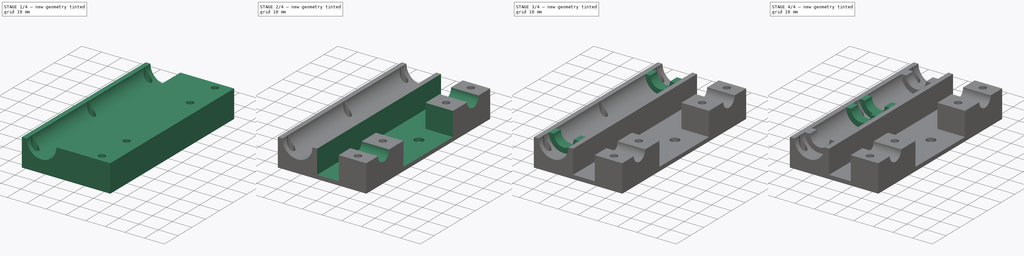
[diagram: build sequence overview — one tinted view per stage of 4, left to right]
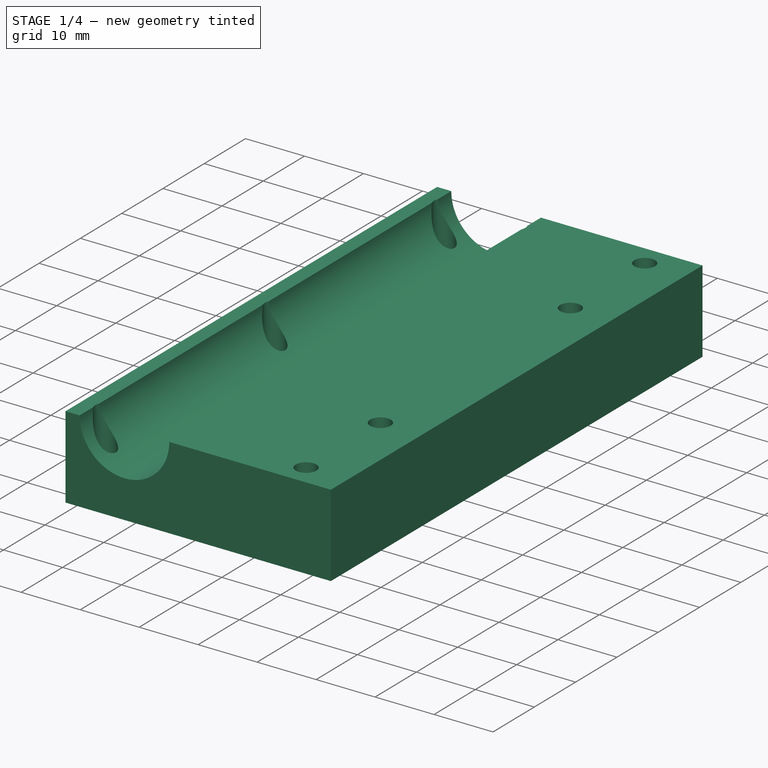
[diagram: stage 1 of 4 — iso view after this stage's code; geometry added in this stage tinted green]
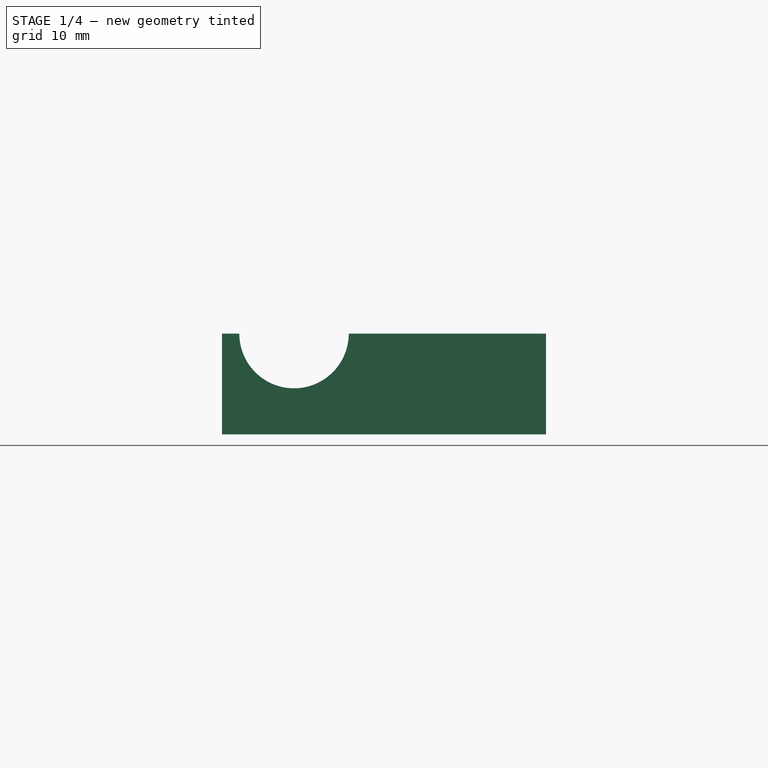
[diagram: stage 1 of 4 — front view after this stage's code; geometry added in this stage tinted green]
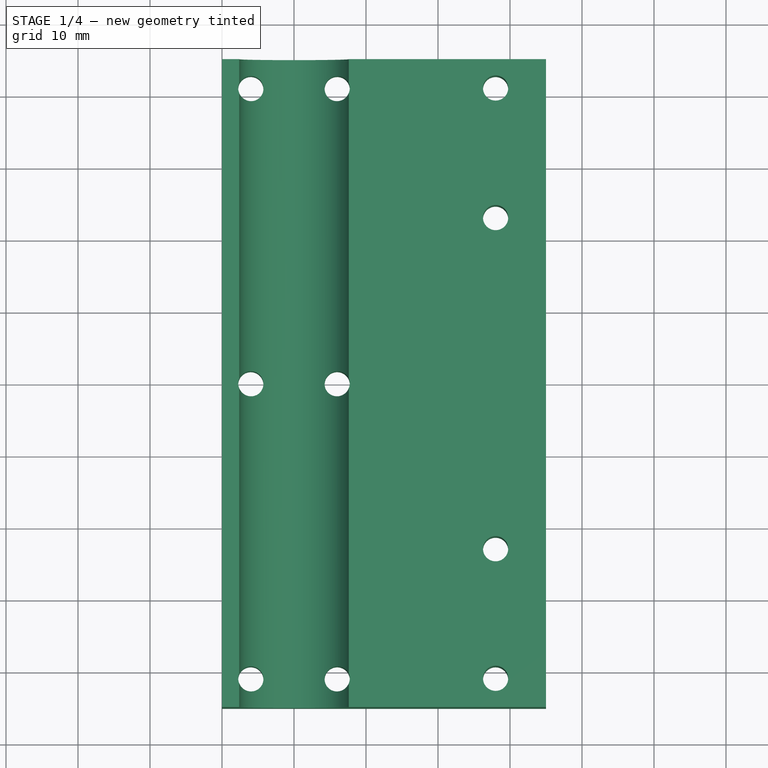
[diagram: stage 1 of 4 — top view after this stage's code; geometry added in this stage tinted green]
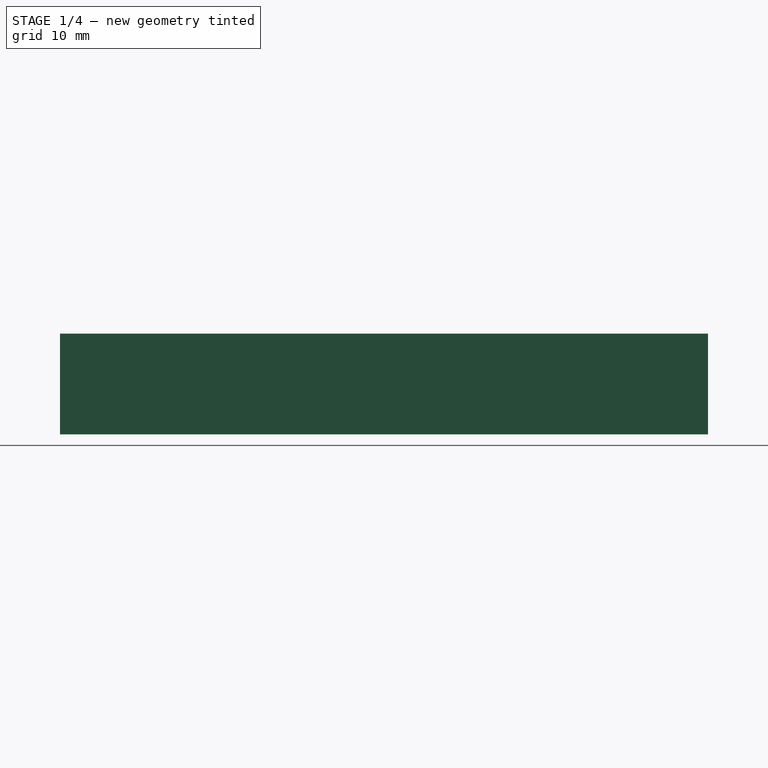
[diagram: stage 1 of 4 — right view after this stage's code; geometry added in this stage tinted green]
FCSTD DOCUMENT  (FreeCAD 0.16R4945 (Git))
Label: XY-block wide topM
License: CC-BY 3.0
LicenseURL: http://creativecommons.org/licenses/by/3.0/
objects: Sketcher::SketchObject×12, PartDesign::Pocket×7, PartDesign::Pad×5, Part::MultiFuse×1
note: 37 computed .brp shape members not serialized (recipe doc carries the construction recipe); baked Part::Feature solids carry a one-line shape summary decoded from their .brp

FEATURE [Sketcher::SketchObject] Sketch
  sketch-geometry (4):
    g0: LineSegment StartX=-10 StartY=-45 StartZ=0 EndX=35 EndY=-45 EndZ=0
    g1: LineSegment StartX=35 StartY=-45 StartZ=0 EndX=35 EndY=45 EndZ=0
    g2: LineSegment StartX=35 StartY=45 StartZ=0 EndX=-10 EndY=45 EndZ=0
    g3: LineSegment StartX=-10 StartY=45 StartZ=0 EndX=-10 EndY=-45 EndZ=0
  constraints (12):
    c: Coincident(g0,g1)
    c: Coincident(g1,g2)
    c: Coincident(g2,g3)
    c: Coincident(g3,g0)
    c: Horizontal(g0)
    c: Horizontal(g2)
    c: Vertical(g1)
    c: Vertical(g3)
    c: DistanceX(g0) = 45
    c: DistanceY(g1) = 90
    c: DistanceX(g0) = -10
    c: DistanceY(g0) = -45
FEATURE [PartDesign::Pad] Pad
  Length = 14
  Length2 = 100
  Sketch = -> Sketch
  Type = 0
FEATURE [Sketcher::SketchObject] Sketch001
  Placement = pos=(0,-45,0) rot=(1,0,0;1.5708rad)
  Support = -> Pad [Face1]
  sketch-geometry (1):
    g0: Circle CenterX=0 CenterY=14 CenterZ=0 NormalX=0 NormalY=0 NormalZ=1 Radius=7.6
  constraints (3):
    c: Radius(g0) = 7.6
    c: DistanceX(g0) = 0
    c: DistanceY(g0) = 14
FEATURE [PartDesign::Pocket] Pocket  label="Pocket-lm8uu-hole"
  Length = 5
  Sketch = -> Sketch001
  Type = 1
FEATURE [Sketcher::SketchObject] Sketch002
  ExternalGeometry = -> [Pocket]
  Placement = pos=(0,0,14) rot=(0,0,1;0rad)
  Support = -> Pocket [Face4]
  sketch-geometry (17):
    g0: Circle CenterX=-6 CenterY=41 CenterZ=0 NormalX=0 NormalY=0 NormalZ=1 Radius=1.75
    g1: Circle CenterX=-6 CenterY=-41 CenterZ=0 NormalX=0 NormalY=0 NormalZ=1 Radius=1.75
    g2: LineSegment [constr] StartX=-6 StartY=41 StartZ=0 EndX=28 EndY=41 EndZ=0
    g3: LineSegment [constr] StartX=28 StartY=41 StartZ=0 EndX=28 EndY=-41 EndZ=0
    g4: LineSegment [constr] StartX=28 StartY=-41 StartZ=0 EndX=-6 EndY=-41 EndZ=0
    g5: Circle CenterX=6 CenterY=41 CenterZ=0 NormalX=0 NormalY=0 NormalZ=1 Radius=1.75
    g6: Circle CenterX=6 CenterY=-41 CenterZ=0 NormalX=0 NormalY=0 NormalZ=1 Radius=1.75
    g7: Circle CenterX=6 CenterY=0 CenterZ=0 NormalX=0 NormalY=0 NormalZ=1 Radius=1.75
    g8: Circle CenterX=-6 CenterY=0 CenterZ=0 NormalX=0 NormalY=0 NormalZ=1 Radius=1.75
    g9: LineSegment [constr] StartX=6 StartY=41 StartZ=0 EndX=6 EndY=-41 EndZ=0
    g10: LineSegment [constr] StartX=-6 StartY=0 StartZ=0 EndX=6 EndY=0 EndZ=0
    g11: LineSegment [constr] StartX=-6 StartY=-41 StartZ=0 EndX=-6 EndY=0 EndZ=0
    g12: LineSegment [constr] StartX=-6 StartY=0 StartZ=0 EndX=-6 EndY=41 EndZ=0
    g13: Circle CenterX=28 CenterY=41 CenterZ=0 NormalX=0 NormalY=0 NormalZ=1 Radius=1.75
    g14: Circle CenterX=28 CenterY=23 CenterZ=0 NormalX=0 NormalY=0 NormalZ=1 Radius=1.75
    g15: Circle CenterX=28 CenterY=-23 CenterZ=0 NormalX=0 NormalY=0 NormalZ=1 Radius=1.75
    g16: Circle CenterX=28 CenterY=-41 CenterZ=0 NormalX=0 NormalY=0 NormalZ=1 Radius=1.75
  constraints (44):
    c: Radius(g0) = 1.75
    c: Equal(g0,g1)
    c: Coincident(g2,g3)
    c: Coincident(g3,g4)
    c: Horizontal(g2)
    c: Horizontal(g4)
    c: Vertical(g3)
    c: Coincident(g0,g2)
    c: Coincident(g4,g1)
    c: Equal(g0,g5)
    c: Equal(g0,g6)
    c: Equal(g8,g0)
    c: Equal(g7,g0)
    c: Coincident(g9,g5)
    c: Coincident(g9,g6)
    c: PointOnObject(g10,g9)
    c: Horizontal(g10)
    c: Vertical(g9)
    c: PointOnObject(g5,g2)
    c: PointOnObject(g6,g4)
    c: Coincident(g8,g10)
    c: Coincident(g7,g10)
    c: Coincident(g11,g1)
    c: Coincident(g11,g8)
    c: Vertical(g11)
    c: Coincident(g12,g8)
    c: Coincident(g12,g0)
    c: Vertical(g12)
    c: Equal(g12,g11)
    c: DistanceX(g1,g6) = 12
    c: DistanceX(g-1,g8) = -6
    c: DistanceY(g-1,g1) = -41
    c: Symmetric(g-3,g-3,g10)
    c: Coincident(g13,g2)
    c: PointOnObject(g14,g3)
    c: PointOnObject(g15,g3)
    c: Coincident(g16,g3)
    c: Radius(g16) = 1.75
    c: Equal(g16,g15)
    c: Equal(g15,g14)
    c: Equal(g14,g13)
    c: Distance(g2,g14) = 18
    c: Distance(g15,g3) = 18
    c: Distance(g0,g2) = 34
FEATURE [PartDesign::Pocket] Pocket001  label="Pocket-mount-holes"
  Length = 5
  Sketch = -> Sketch002
  Type = 1
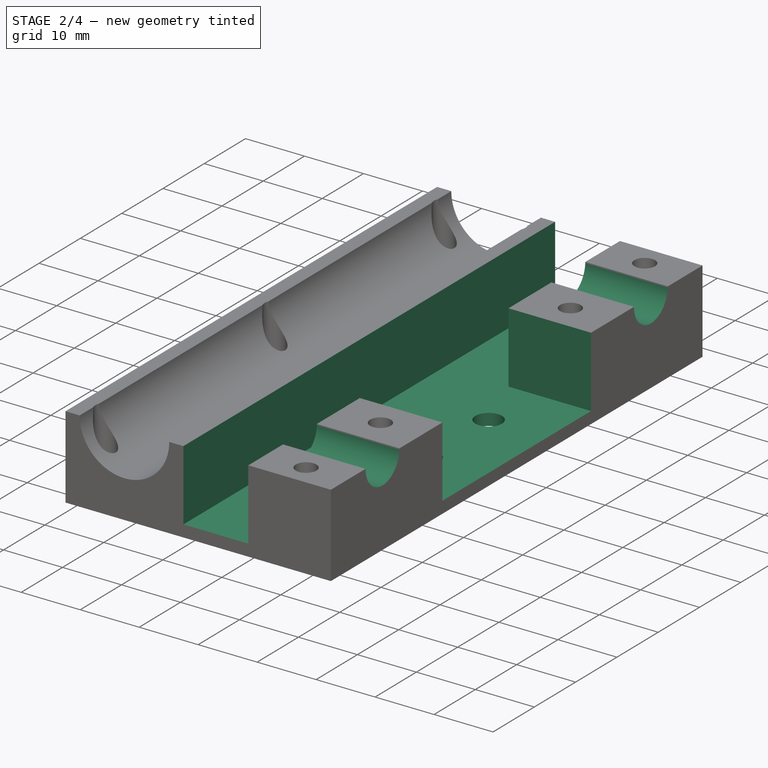
[diagram: stage 2 of 4 — iso view after this stage's code; geometry added in this stage tinted green]
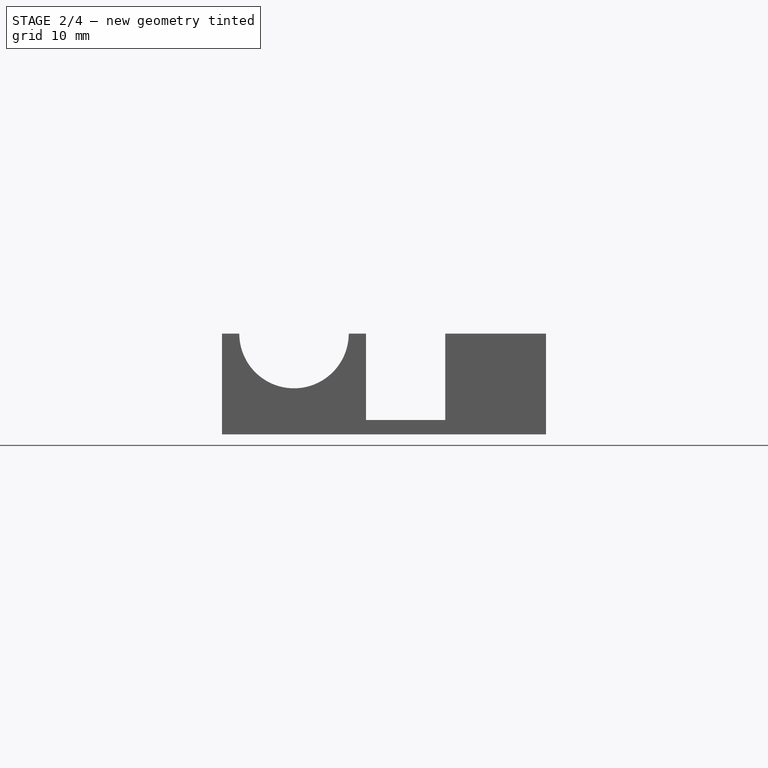
[diagram: stage 2 of 4 — front view after this stage's code; geometry added in this stage tinted green]
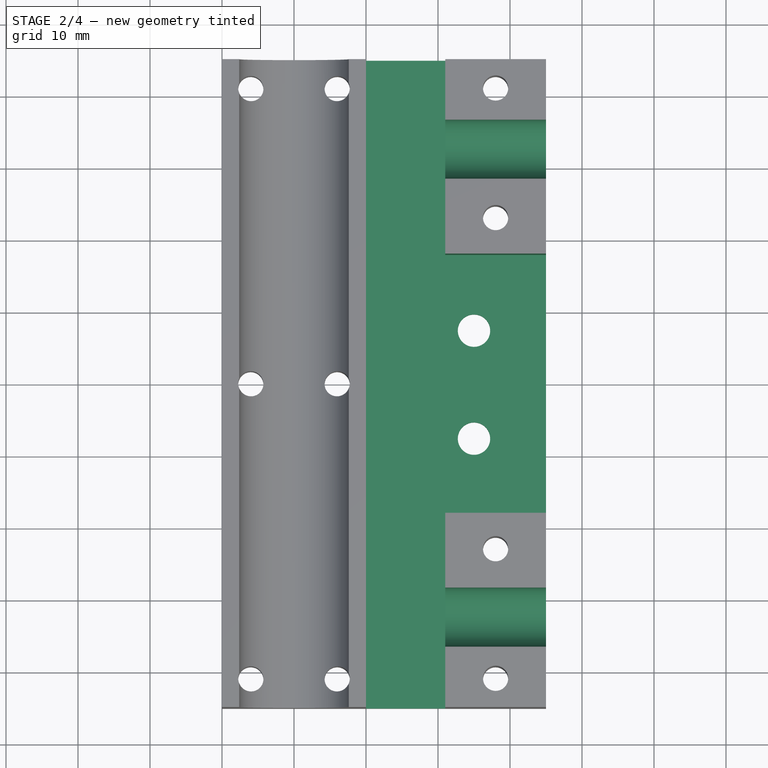
[diagram: stage 2 of 4 — top view after this stage's code; geometry added in this stage tinted green]
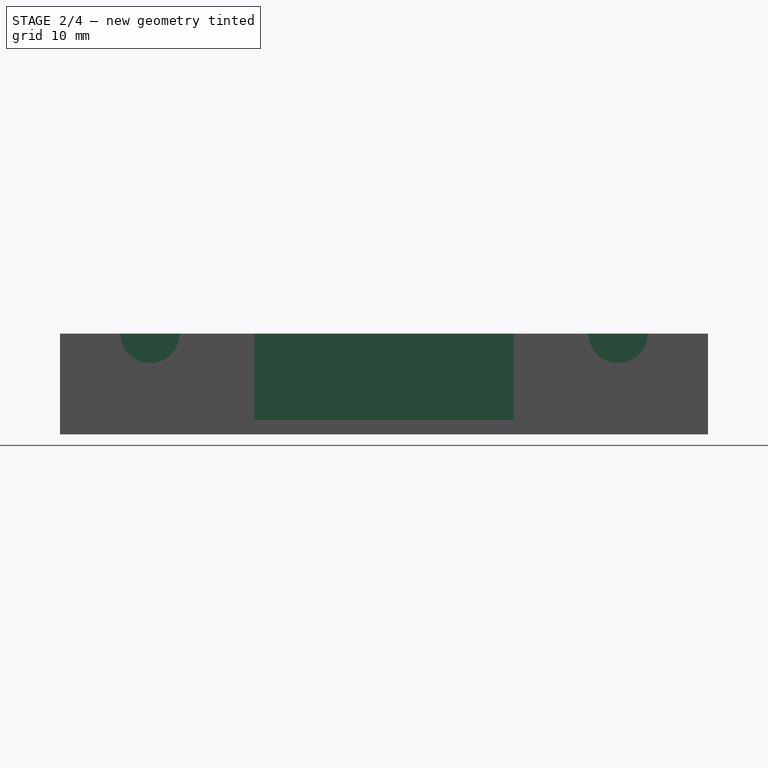
[diagram: stage 2 of 4 — right view after this stage's code; geometry added in this stage tinted green]
FEATURE [Sketcher::SketchObject] Sketch003
  Placement = pos=(0,0,14) rot=(0,0,1;0rad)
  Support = -> Pocket001 [Face4]
  sketch-geometry (8):
    g0: LineSegment StartX=10 StartY=50 StartZ=0 EndX=10 EndY=-50 EndZ=0
    g1: LineSegment StartX=10 StartY=-50 StartZ=0 EndX=21 EndY=-50 EndZ=0
    g2: LineSegment StartX=21 StartY=-50 StartZ=0 EndX=21 EndY=-18 EndZ=0
    g3: LineSegment StartX=21 StartY=-18 StartZ=0 EndX=41 EndY=-18 EndZ=0
    g4: LineSegment StartX=41 StartY=-18 StartZ=0 EndX=41 EndY=18 EndZ=0
    g5: LineSegment StartX=41 StartY=18 StartZ=0 EndX=21 EndY=18 EndZ=0
    g6: LineSegment StartX=21 StartY=18 StartZ=0 EndX=21 EndY=50 EndZ=0
    g7: LineSegment StartX=21 StartY=50 StartZ=0 EndX=10 EndY=50 EndZ=0
  constraints (24):
    c: Vertical(g0)
    c: Horizontal(g1)
    c: Coincident(g1,g2)
    c: Vertical(g2)
    c: Horizontal(g3)
    c: Coincident(g3,g4)
    c: Vertical(g4)
    c: Coincident(g4,g5)
    c: Horizontal(g5)
    c: Vertical(g6)
    c: Coincident(g6,g7)
    c: Coincident(g7,g0)
    c: Horizontal(g7)
    c: Coincident(g1,g0)
    c: Equal(g1,g7)
    c: Equal(g6,g2)
    c: DistanceX(g-1,g0) = 10
    c: DistanceX(g7) = -11
    c: DistanceY(g-1,g0) = 50
    c: DistanceY(g4) = 36
    c: Distance(g3) = 20
    c: Coincident(g5,g6)
    c: Coincident(g3,g2)
    c: Symmetric(g1,g6,g-1)
FEATURE [PartDesign::Pocket] Pocket002  label="Pocket-belt-path"
  Length = 12
  Sketch = -> Sketch003
  Type = 0
FEATURE [Sketcher::SketchObject] Sketch004
  Placement = pos=(0,0,0) rot=(1,0,0;3.14159rad)
  Support = -> Pocket002 [Face2]
  sketch-geometry (3):
    g0: Circle CenterX=25 CenterY=7.5 CenterZ=0 NormalX=0 NormalY=0 NormalZ=1 Radius=2.25
    g1: Circle CenterX=25 CenterY=-7.5 CenterZ=0 NormalX=0 NormalY=0 NormalZ=1 Radius=2.25
    g2: LineSegment [constr] StartX=25 StartY=7.5 StartZ=0 EndX=25 EndY=-7.5 EndZ=0
  constraints (8):
    c: Coincident(g2,g0)
    c: Coincident(g2,g1)
    c: Vertical(g2)
    c: DistanceX(g-1,g1) = 25
    c: Equal(g0,g1)
    c: Radius(g0) = 2.25
    c: Distance(g2) = 15
    c: DistanceY(g-1,g0) = 7.5
FEATURE [PartDesign::Pocket] Pocket003  label="Pocket-idler-pulleys-holes"
  Length = 5
  Sketch = -> Sketch004
  Type = 1
FEATURE [Sketcher::SketchObject] Sketch008
  Placement = pos=(35,0,0) rot=(0.57735,0.57735,0.57735;2.0944rad)
  Support = -> Pocket003 [Face3]
  sketch-geometry (2):
    g0: Circle CenterX=-32.5 CenterY=14 CenterZ=0 NormalX=0 NormalY=0 NormalZ=1 Radius=4.1
    g1: Circle CenterX=32.5 CenterY=14 CenterZ=0 NormalX=0 NormalY=0 NormalZ=1 Radius=4.1
  constraints (5):
    c: Symmetric(g0,g1,g-2)
    c: Equal(g0,g1)
    c: Radius(g0) = 4.1
    c: DistanceY(g-1,g0) = 14
    c: DistanceX(g0,g1) = 65
FEATURE [PartDesign::Pocket] Pocket005  label="Pocket-x-axis-holes"
  Length = 20
  Sketch = -> Sketch008
  Type = 0
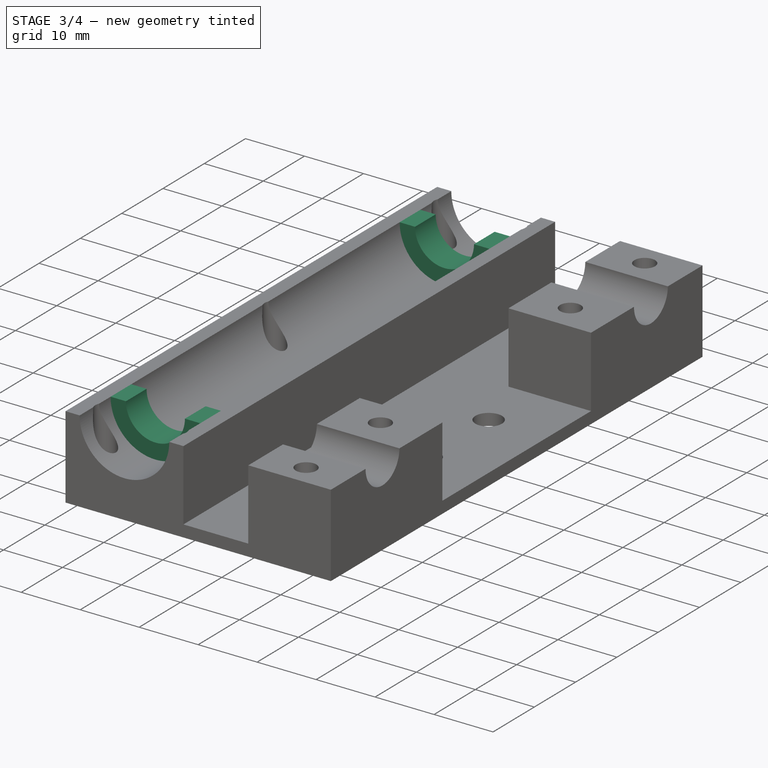
[diagram: stage 3 of 4 — iso view after this stage's code; geometry added in this stage tinted green]
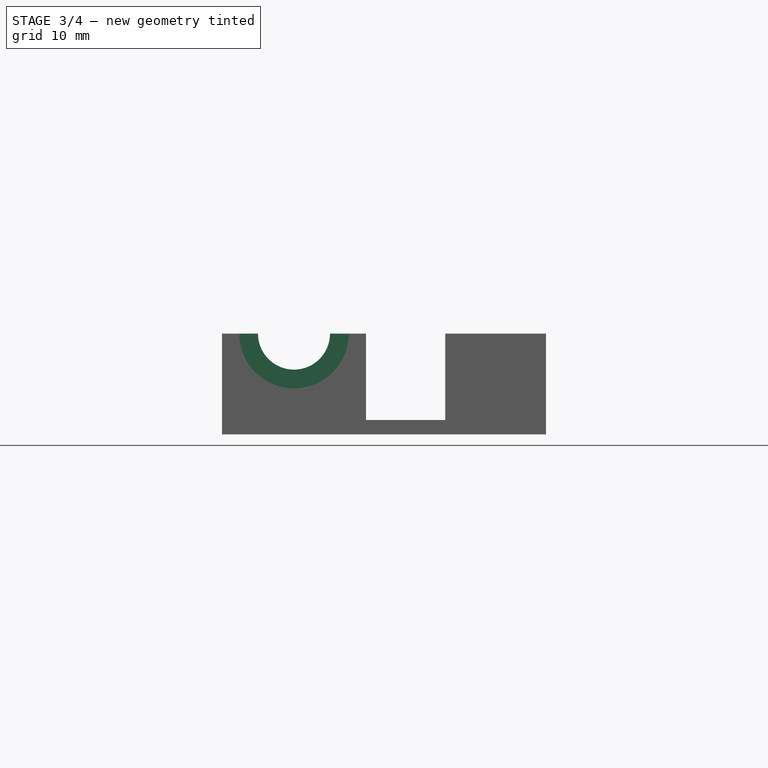
[diagram: stage 3 of 4 — front view after this stage's code; geometry added in this stage tinted green]
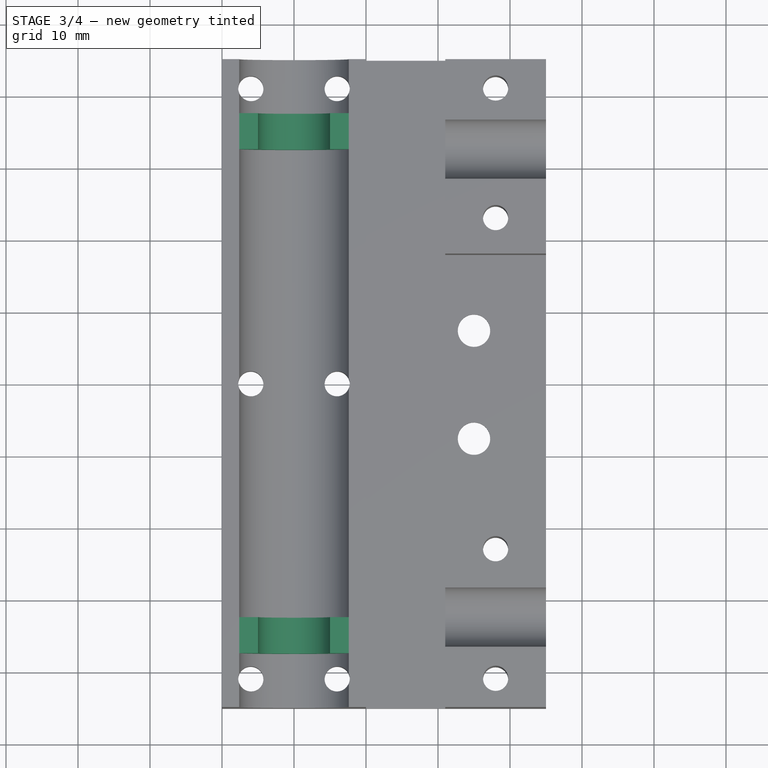
[diagram: stage 3 of 4 — top view after this stage's code; geometry added in this stage tinted green]
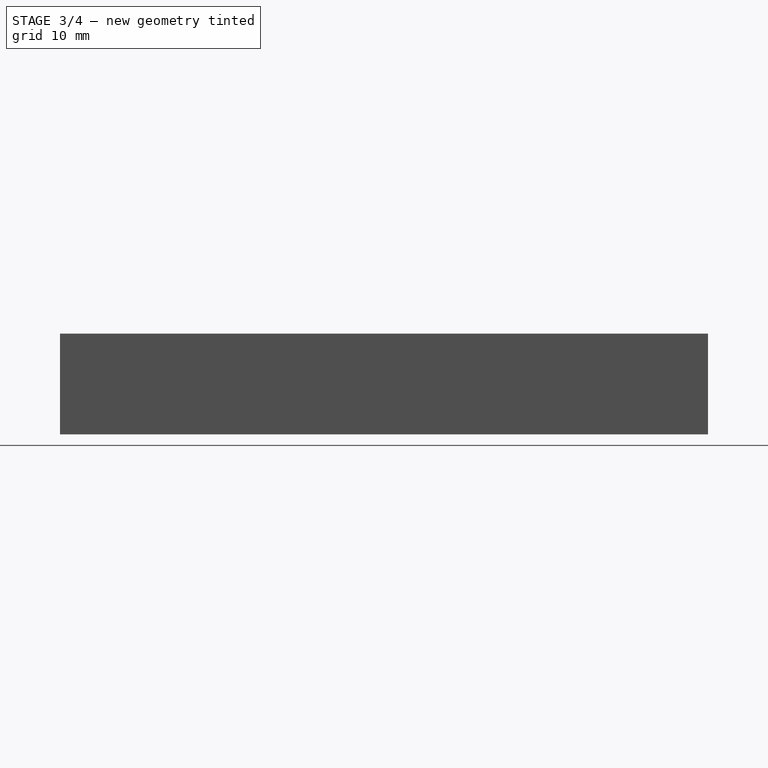
[diagram: stage 3 of 4 — right view after this stage's code; geometry added in this stage tinted green]
FEATURE [PartDesign::Pad] Pad003
  Length = 5
  Length2 = 100
  Placement = pos=(0,32.5,0) rot=(1,0,0;1.5708rad)
  Reversed = true
  Sketch = -> Sketch020
  Type = 0
FEATURE [PartDesign::Pad] Pad004
  Length = 5
  Length2 = 100
  Placement = pos=(0,-32.5,0) rot=(1,0,0;1.5708rad)
  Sketch = -> Sketch021
  Type = 0
FEATURE [Sketcher::SketchObject] Sketch012
  ExternalGeometry = -> [Pocket005]
  Placement = pos=(0,0,0) rot=(1,0,0;3.14159rad)
  Support = -> Pocket005 [Face2]
  sketch-geometry (42):
    g0: LineSegment StartX=-4.41228 StartY=2.75 StartZ=0 EndX=-7.58772 EndY=2.75 EndZ=0
    g1: LineSegment StartX=-7.58772 StartY=2.75 StartZ=0 EndX=-9.17543 EndY=0 EndZ=0
    g2: LineSegment StartX=-9.17543 StartY=0 StartZ=0 EndX=-7.58772 EndY=-2.75 EndZ=0
    g3: LineSegment StartX=-7.58772 StartY=-2.75 StartZ=0 EndX=-4.41228 EndY=-2.75 EndZ=0
    g4: LineSegment StartX=-4.41228 StartY=-2.75 StartZ=0 EndX=-2.82457 EndY=0 EndZ=0
    g5: LineSegment StartX=-2.82457 StartY=0 StartZ=0 EndX=-4.41228 EndY=2.75 EndZ=0
    g6: Circle [constr] CenterX=-6 CenterY=0 CenterZ=0 NormalX=0 NormalY=0 NormalZ=1 Radius=3.17543
    g7: LineSegment StartX=7.58772 StartY=2.75 StartZ=0 EndX=4.41228 EndY=2.75 EndZ=0
    g8: LineSegment StartX=4.41228 StartY=2.75 StartZ=0 EndX=2.82457 EndY=0 EndZ=0
    g9: LineSegment StartX=2.82457 StartY=0 StartZ=0 EndX=4.41228 EndY=-2.75 EndZ=0
    g10: LineSegment StartX=4.41228 StartY=-2.75 StartZ=0 EndX=7.58772 EndY=-2.75 EndZ=0
    g11: LineSegment StartX=7.58772 StartY=-2.75 StartZ=0 EndX=9.17543 EndY=0 EndZ=0
    g12: LineSegment StartX=9.17543 StartY=0 StartZ=0 EndX=7.58772 EndY=2.75 EndZ=0
    g13: Circle [constr] CenterX=6 CenterY=0 CenterZ=0 NormalX=0 NormalY=0 NormalZ=1 Radius=3.17543
    g14: LineSegment StartX=-4.41228 StartY=43.75 StartZ=0 EndX=-7.58772 EndY=43.75 EndZ=0
    g15: LineSegment StartX=-7.58772 StartY=43.75 StartZ=0 EndX=-9.17543 EndY=41 EndZ=0
    g16: LineSegment StartX=-9.17543 StartY=41 StartZ=0 EndX=-7.58772 EndY=38.25 EndZ=0
    g17: LineSegment StartX=-7.58772 StartY=38.25 StartZ=0 EndX=-4.41228 EndY=38.25 EndZ=0
    g18: LineSegment StartX=-4.41228 StartY=38.25 StartZ=0 EndX=-2.82457 EndY=41 EndZ=0
    g19: LineSegment StartX=-2.82457 StartY=41 StartZ=0 EndX=-4.41228 EndY=43.75 EndZ=0
    g20: Circle [constr] CenterX=-6 CenterY=41 CenterZ=0 NormalX=0 NormalY=0 NormalZ=1 Radius=3.17543
    g21: LineSegment StartX=7.58772 StartY=-38.25 StartZ=0 EndX=4.41228 EndY=-38.25 EndZ=0
    g22: LineSegment StartX=4.41228 StartY=-38.25 StartZ=0 EndX=2.82457 EndY=-41 EndZ=0
    g23: LineSegment StartX=2.82457 StartY=-41 StartZ=0 EndX=4.41228 EndY=-43.75 EndZ=0
    g24: LineSegment StartX=4.41228 StartY=-43.75 StartZ=0 EndX=7.58772 EndY=-43.75 EndZ=0
    g25: LineSegment StartX=7.58772 StartY=-43.75 StartZ=0 EndX=9.17543 EndY=-41 EndZ=0
    g26: LineSegment StartX=9.17543 StartY=-41 StartZ=0 EndX=7.58772 EndY=-38.25 EndZ=0
    g27: Circle [constr] CenterX=6 CenterY=-41 CenterZ=0 NormalX=0 NormalY=0 NormalZ=1 Radius=3.17543
    g28: LineSegment StartX=7.58772 StartY=43.75 StartZ=0 EndX=4.41228 EndY=43.75 EndZ=0
    g29: LineSegment StartX=4.41228 StartY=43.75 StartZ=0 EndX=2.82457 EndY=41 EndZ=0
    g30: LineSegment StartX=2.82457 StartY=41 StartZ=0 EndX=4.41228 EndY=38.25 EndZ=0
    g31: LineSegment StartX=4.41228 StartY=38.25 StartZ=0 EndX=7.58772 EndY=38.25 EndZ=0
    g32: LineSegment StartX=7.58772 StartY=38.25 StartZ=0 EndX=9.17543 EndY=41 EndZ=0
    g33: LineSegment StartX=9.17543 StartY=41 StartZ=0 EndX=7.58772 EndY=43.75 EndZ=0
    g34: Circle [constr] CenterX=6 CenterY=41 CenterZ=0 NormalX=0 NormalY=0 NormalZ=1 Radius=3.17543
    g35: LineSegment StartX=-4.41228 StartY=-38.25 StartZ=0 EndX=-7.58772 EndY=-38.25 EndZ=0
    g36: LineSegment StartX=-7.58772 StartY=-38.25 StartZ=0 EndX=-9.17543 EndY=-41 EndZ=0
    g37: LineSegment StartX=-9.17543 StartY=-41 StartZ=0 EndX=-7.58772 EndY=-43.75 EndZ=0
    g38: LineSegment StartX=-7.58772 StartY=-43.75 StartZ=0 EndX=-4.41228 EndY=-43.75 EndZ=0
    g39: LineSegment StartX=-4.41228 StartY=-43.75 StartZ=0 EndX=-2.82457 EndY=-41 EndZ=0
    g40: LineSegment StartX=-2.82457 StartY=-41 StartZ=0 EndX=-4.41228 EndY=-38.25 EndZ=0
    g41: Circle [constr] CenterX=-6 CenterY=-41 CenterZ=0 NormalX=0 NormalY=0 NormalZ=1 Radius=3.17543
  constraints (90):
    c: Coincident(g0,g1)
    c: Coincident(g1,g2)
    c: Coincident(g2,g3)
    c: Coincident(g3,g4)
    c: Coincident(g4,g5)
    c: Coincident(g5,g0)
    c: Equal(g0, g1-g5) x5
    c: PointOnObject(g0,g6)
    c: PointOnObject(g1,g6)
    c: PointOnObject(g2,g6)
    c: PointOnObject(g3,g6)
    c: PointOnObject(g4,g6)
    c: PointOnObject(g5,g6)
    c: Horizontal(g0)
    c: Distance(g5) = 3.17543
    c: Coincident(g7,g8)
    c: Coincident(g8,g9)
    c: Coincident(g9,g10)
    c: Coincident(g10,g11)
    c: Coincident(g11,g12)
    c: Coincident(g12,g7)
    c: Equal(g7, g8-g12) x5
    c: PointOnObject(g7,g13)
    c: PointOnObject(g8,g13)
    c: PointOnObject(g9,g13)
    c: PointOnObject(g10,g13)
    c: PointOnObject(g11,g13)
    c: PointOnObject(g12,g13)
    c: Coincident(g14,g15)
    c: Coincident(g15,g16)
    c: Coincident(g16,g17)
    c: Coincident(g17,g18)
    c: Coincident(g18,g19)
    c: Coincident(g19,g14)
    c: Equal(g14, g15-g19) x5
    c: PointOnObject(g14,g20)
    c: PointOnObject(g15,g20)
    c: PointOnObject(g16,g20)
    c: PointOnObject(g17,g20)
    c: PointOnObject(g18,g20)
    c: PointOnObject(g19,g20)
    c: Coincident(g21,g22)
    c: Coincident(g22,g23)
    c: Coincident(g23,g24)
    c: Coincident(g24,g25)
    c: Coincident(g25,g26)
    c: Coincident(g26,g21)
    c: Equal(g21, g22-g26) x5
    c: PointOnObject(g21,g27)
    c: PointOnObject(g22,g27)
    c: PointOnObject(g23,g27)
    c: PointOnObject(g24,g27)
    c: PointOnObject(g25,g27)
    c: PointOnObject(g26,g27)
    c: Coincident(g28,g29)
    c: Coincident(g29,g30)
    c: Coincident(g30,g31)
    c: Coincident(g31,g32)
    c: Coincident(g32,g33)
    c: Coincident(g33,g28)
    c: Equal(g28, g29-g33) x5
    c: PointOnObject(g28,g34)
    c: PointOnObject(g29,g34)
    c: PointOnObject(g30,g34)
    c: PointOnObject(g31,g34)
    c: PointOnObject(g32,g34)
    c: PointOnObject(g33,g34)
    c: Coincident(g35,g36)
    c: Coincident(g36,g37)
    c: Coincident(g37,g38)
    c: Coincident(g38,g39)
    c: Coincident(g39,g40)
    c: Coincident(g40,g35)
    c: Equal(g35, g36-g40) x5
    c: PointOnObject(g35,g41)
    c: PointOnObject(g36,g41)
    c: PointOnObject(g37,g41)
    c: PointOnObject(g38,g41)
    c: PointOnObject(g39,g41)
    c: PointOnObject(g40,g41)
    c: Horizontal(g28)
    c: Horizontal(g35)
    c: Horizontal(g14)
    c: Horizontal(g21)
    c: Horizontal(g7)
    c: Equal(g6,g13)
    c: Equal(g13,g20)
    c: Equal(g20,g27)
    c: Equal(g27,g34)
    c: Equal(g34,g41)
FEATURE [PartDesign::Pocket] Pocket006
  Length = 3.5
  Sketch = -> Sketch012
  Type = 0
FEATURE [Sketcher::SketchObject] Sketch022
  Placement = pos=(0,0,2) rot=(0,0,1;0rad)
  Support = -> Pocket006 [Face6]
  sketch-geometry (6):
    g0: LineSegment StartX=44.5737 StartY=18 StartZ=0 EndX=36 EndY=3.425 EndZ=0
    g1: LineSegment StartX=36 StartY=3.425 StartZ=0 EndX=36 EndY=-3.425 EndZ=0
    g2: LineSegment StartX=36 StartY=-3.425 StartZ=0 EndX=44.5737 EndY=-18 EndZ=0
    g3: LineSegment StartX=44.5737 StartY=18 StartZ=0 EndX=55.5737 EndY=18 EndZ=0
    g4: LineSegment StartX=44.5737 StartY=-18 StartZ=0 EndX=55.5737 EndY=-18 EndZ=0
    g5: LineSegment StartX=55.5737 StartY=-18 StartZ=0 EndX=55.5737 EndY=18 EndZ=0
  constraints (17):
    c: Coincident(g0,g1)
    c: Vertical(g1)
    c: Coincident(g1,g2)
    c: Symmetric(g0,g1,g-1)
    c: Symmetric(g0,g2,g-1)
    c: DistanceX(g-2,g0) = 36
    c: Distance(g1) = 6.85
    c: Coincident(g0,g3)
    c: Horizontal(g3)
    c: Angle(g0,g3) = 2.10253
    c: Coincident(g2,g4)
    c: Horizontal(g4)
    c: Coincident(g4,g5)
    c: DistanceY(g0,g2) = -36
    c: Vertical(g5)
    c: Coincident(g5,g3)
    c: Distance(g3) = 11
FEATURE [PartDesign::Pocket] Pocket007
  Length = 5
  Sketch = -> Sketch022
  Type = 0
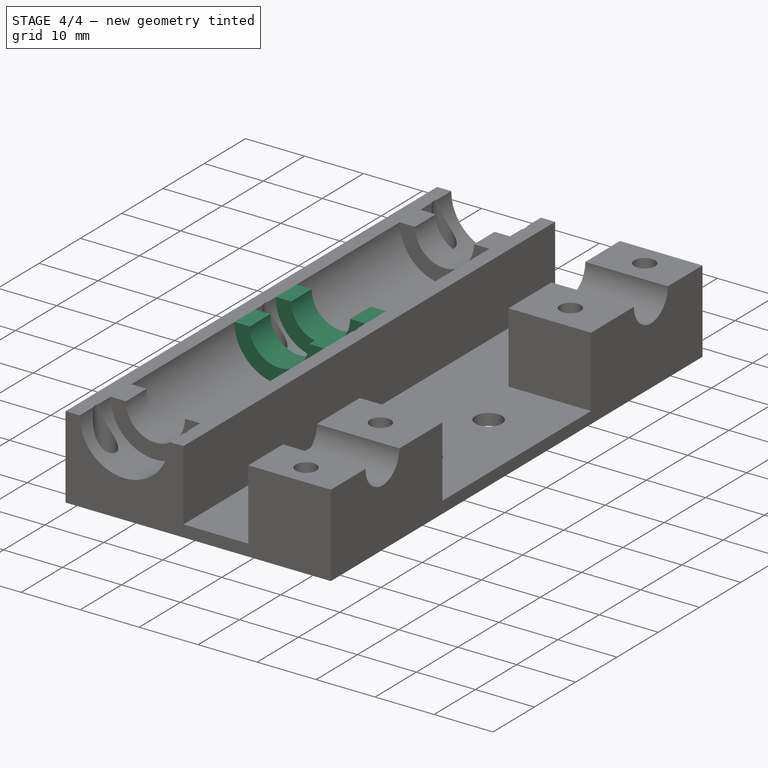
[diagram: stage 4 of 4 — iso view after this stage's code; geometry added in this stage tinted green]
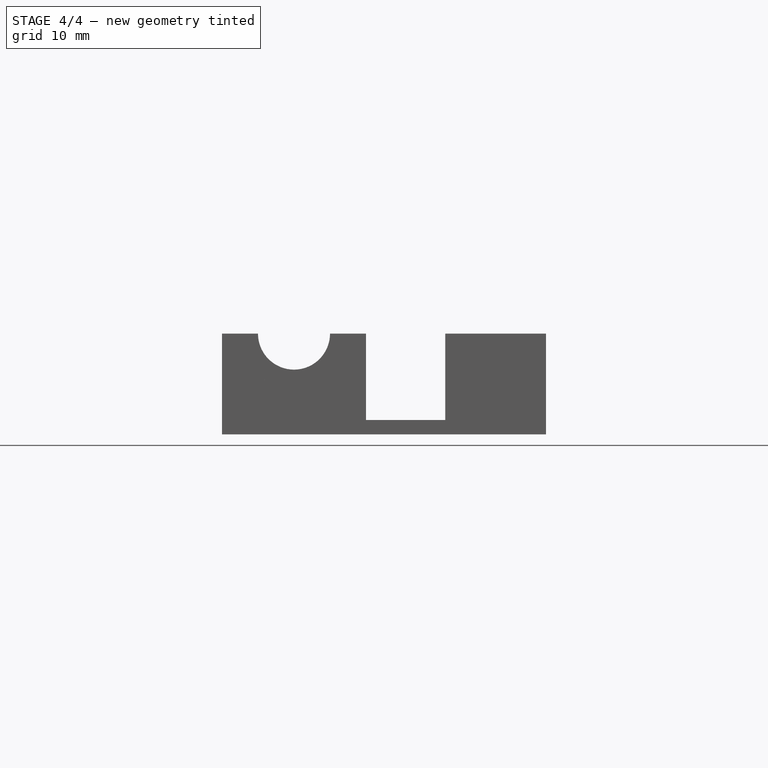
[diagram: stage 4 of 4 — front view after this stage's code; geometry added in this stage tinted green]
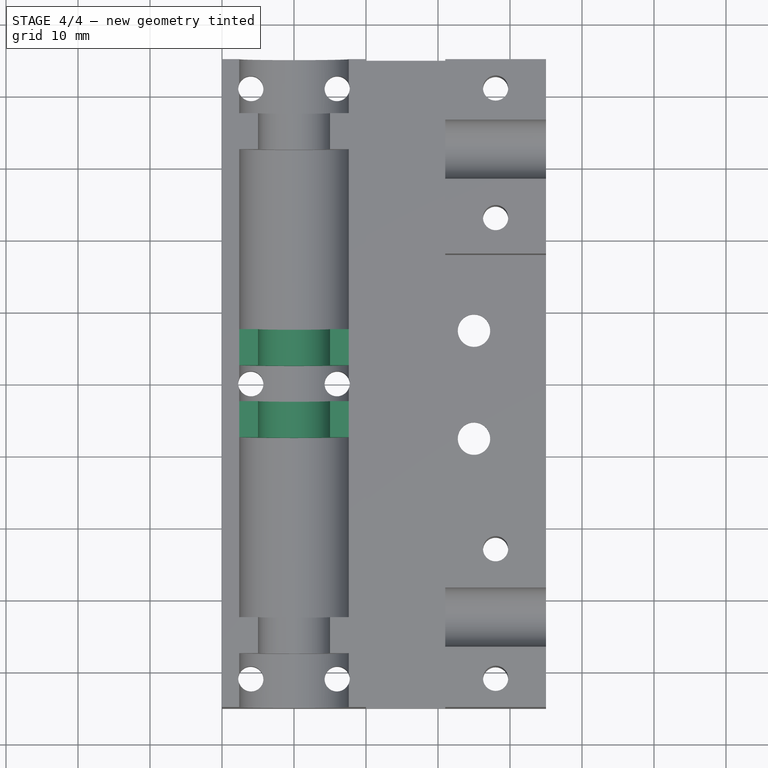
[diagram: stage 4 of 4 — top view after this stage's code; geometry added in this stage tinted green]
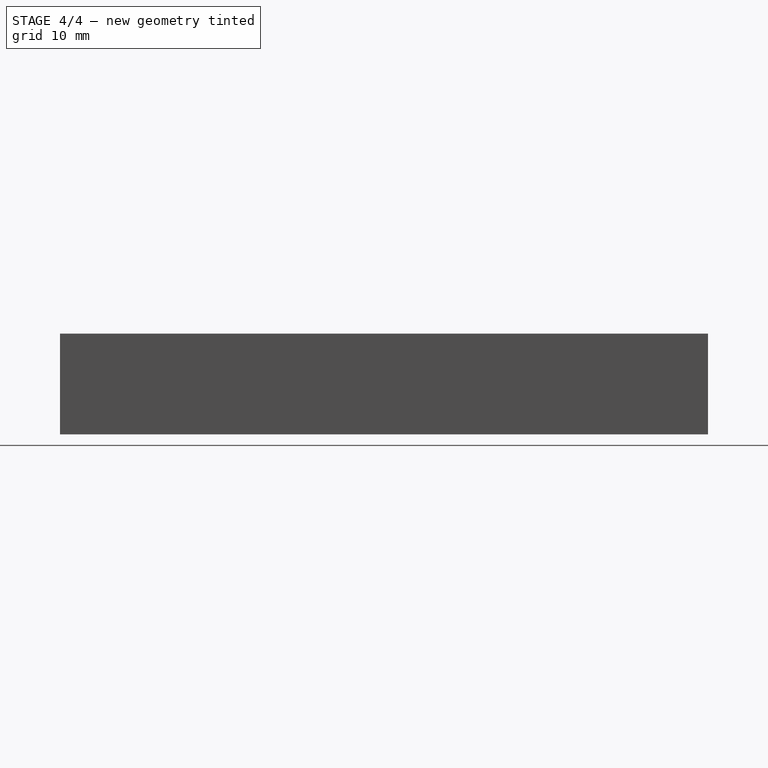
[diagram: stage 4 of 4 — right view after this stage's code; geometry added in this stage tinted green]
FEATURE [Sketcher::SketchObject] Sketch018
  Placement = pos=(0,7.5,0) rot=(1,0,0;1.5708rad)
  sketch-geometry (4):
    g0: ArcOfCircle CenterX=0 CenterY=14 CenterZ=0 NormalX=0 NormalY=0 NormalZ=1 Radius=7.6 StartAngle=3.14159 EndAngle=6.28319
    g1: LineSegment StartX=-7.6 StartY=14 StartZ=0 EndX=-5 EndY=14 EndZ=0
    g2: LineSegment StartX=7.6 StartY=14 StartZ=0 EndX=5 EndY=14 EndZ=0
    g3: ArcOfCircle CenterX=0 CenterY=14 CenterZ=0 NormalX=0 NormalY=0 NormalZ=1 Radius=5 StartAngle=3.14159 EndAngle=6.28319
  constraints (13):
    c: PointOnObject(g0,g-2)
    c: Coincident(g1,g0)
    c: Horizontal(g1)
    c: Coincident(g2,g0)
    c: Horizontal(g2)
    c: Coincident(g3,g0)
    c: Coincident(g3,g1)
    c: Coincident(g3,g2)
    c: DistanceY(g-1,g0) = 14
    c: Radius(g3) = 5
    c: Radius(g0) = 7.6
    c: DistanceY(g1,g0) = 0
    c: DistanceY(g2,g0) = 0
FEATURE [Sketcher::SketchObject] Sketch019
  Placement = pos=(0,-7.5,0) rot=(1,0,0;1.5708rad)
  sketch-geometry (4):
    g0: ArcOfCircle CenterX=0 CenterY=14 CenterZ=0 NormalX=0 NormalY=0 NormalZ=1 Radius=7.6 StartAngle=3.14159 EndAngle=6.28319
    g1: LineSegment StartX=-7.6 StartY=14 StartZ=0 EndX=-5 EndY=14 EndZ=0
    g2: LineSegment StartX=7.6 StartY=14 StartZ=0 EndX=5 EndY=14 EndZ=0
    g3: ArcOfCircle CenterX=0 CenterY=14 CenterZ=0 NormalX=0 NormalY=0 NormalZ=1 Radius=5 StartAngle=3.14159 EndAngle=6.28319
  constraints (13):
    c: PointOnObject(g0,g-2)
    c: Coincident(g1,g0)
    c: Horizontal(g1)
    c: Coincident(g2,g0)
    c: Horizontal(g2)
    c: Coincident(g3,g0)
    c: Coincident(g3,g1)
    c: Coincident(g3,g2)
    c: DistanceY(g-1,g0) = 14
    c: Radius(g3) = 5
    c: Radius(g0) = 7.6
    c: DistanceY(g1,g0) = 0
    c: DistanceY(g2,g0) = 0
FEATURE [Sketcher::SketchObject] Sketch020
  Placement = pos=(0,32.5,0) rot=(1,0,0;1.5708rad)
  sketch-geometry (4):
    g0: ArcOfCircle CenterX=0 CenterY=14 CenterZ=0 NormalX=0 NormalY=0 NormalZ=1 Radius=7.6 StartAngle=3.14159 EndAngle=6.28319
    g1: LineSegment StartX=-7.6 StartY=14 StartZ=0 EndX=-5 EndY=14 EndZ=0
    g2: LineSegment StartX=7.6 StartY=14 StartZ=0 EndX=5 EndY=14 EndZ=0
    g3: ArcOfCircle CenterX=0 CenterY=14 CenterZ=0 NormalX=0 NormalY=0 NormalZ=1 Radius=5 StartAngle=3.14159 EndAngle=6.28319
  constraints (13):
    c: PointOnObject(g0,g-2)
    c: Coincident(g1,g0)
    c: Horizontal(g1)
    c: Coincident(g2,g0)
    c: Horizontal(g2)
    c: Coincident(g3,g0)
    c: Coincident(g3,g1)
    c: Coincident(g3,g2)
    c: DistanceY(g-1,g0) = 14
    c: Radius(g3) = 5
    c: Radius(g0) = 7.6
    c: DistanceY(g1,g0) = 0
    c: DistanceY(g2,g0) = 0
FEATURE [Sketcher::SketchObject] Sketch021
  Placement = pos=(0,-32.5,0) rot=(1,0,0;1.5708rad)
  sketch-geometry (4):
    g0: ArcOfCircle CenterX=0 CenterY=14 CenterZ=0 NormalX=0 NormalY=0 NormalZ=1 Radius=7.6 StartAngle=3.14159 EndAngle=6.28319
    g1: LineSegment StartX=-7.6 StartY=14 StartZ=0 EndX=-5 EndY=14 EndZ=0
    g2: LineSegment StartX=7.6 StartY=14 StartZ=0 EndX=5 EndY=14 EndZ=0
    g3: ArcOfCircle CenterX=0 CenterY=14 CenterZ=0 NormalX=0 NormalY=0 NormalZ=1 Radius=5 StartAngle=3.14159 EndAngle=6.28319
  constraints (13):
    c: PointOnObject(g0,g-2)
    c: Coincident(g1,g0)
    c: Horizontal(g1)
    c: Coincident(g2,g0)
    c: Horizontal(g2)
    c: Coincident(g3,g0)
    c: Coincident(g3,g1)
    c: Coincident(g3,g2)
    c: DistanceY(g-1,g0) = 14
    c: Radius(g3) = 5
    c: Radius(g0) = 7.6
    c: DistanceY(g1,g0) = 0
    c: DistanceY(g2,g0) = 0
FEATURE [PartDesign::Pad] Pad001
  Length = 5
  Length2 = 100
  Placement = pos=(0,7.5,0) rot=(1,0,0;1.5708rad)
  Sketch = -> Sketch018
  Type = 0
FEATURE [PartDesign::Pad] Pad002
  Length = 5
  Length2 = 100
  Placement = pos=(0,-7.5,0) rot=(1,0,0;1.5708rad)
  Reversed = true
  Sketch = -> Sketch019
  Type = 0
FEATURE [Part::MultiFuse] Fusion
  Shapes = -> [Pocket007,Pad004,Pad003,Pad002,Pad001]
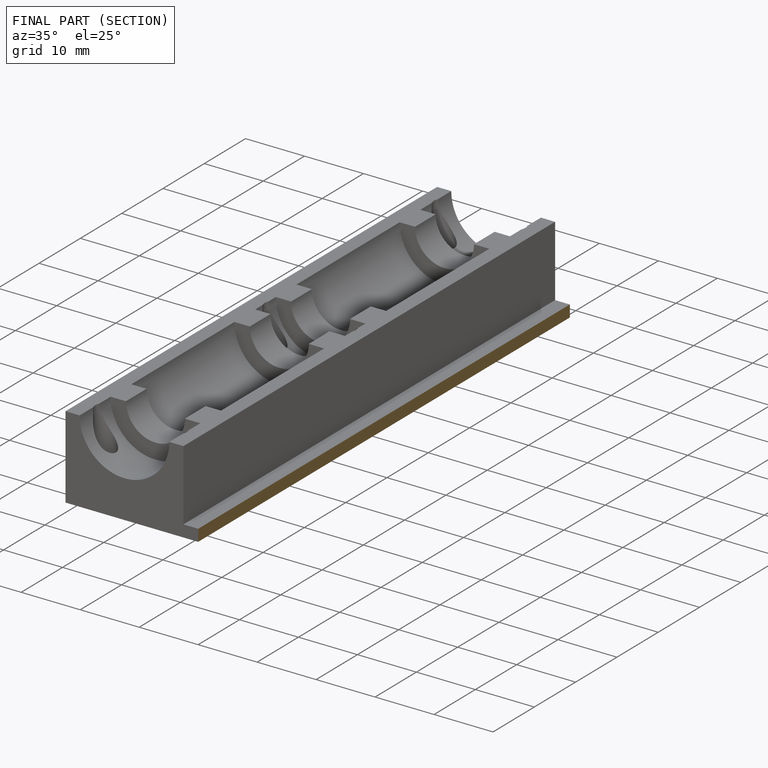
[diagram: finished part — half-section view (interior)]
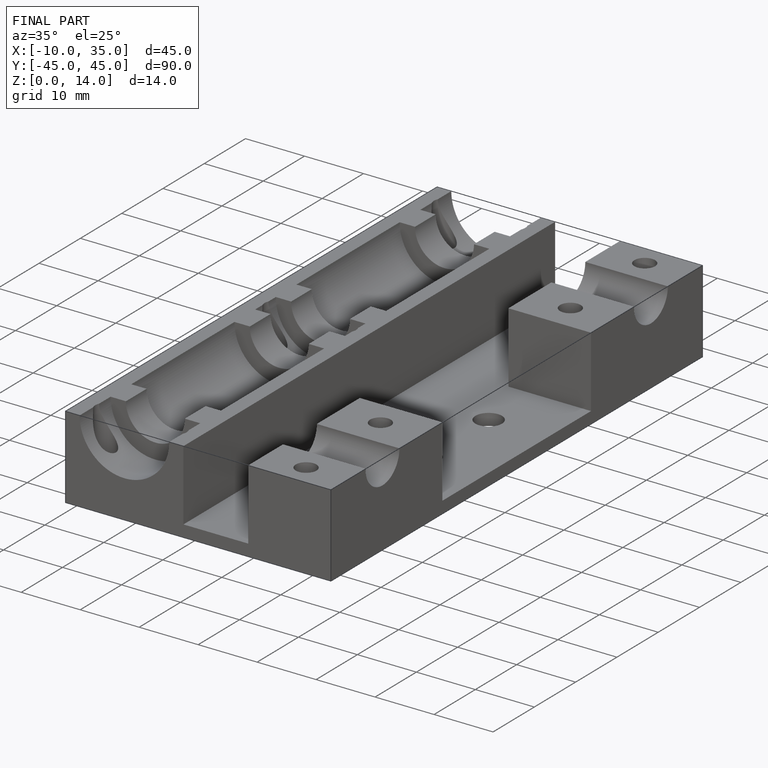
[diagram: finished part — iso view with bounding-box wireframe]
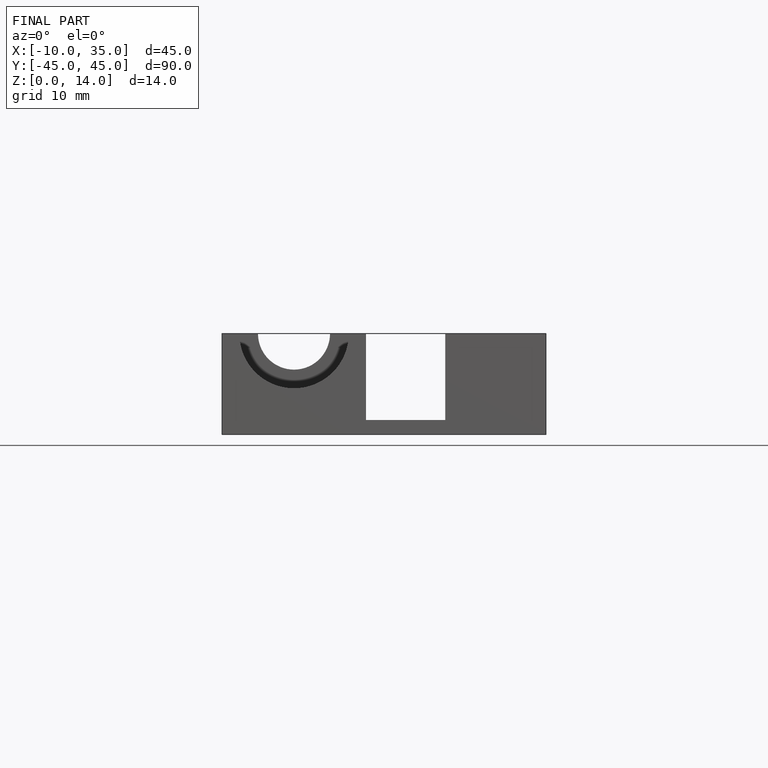
[diagram: finished part — front view with bounding-box wireframe]
